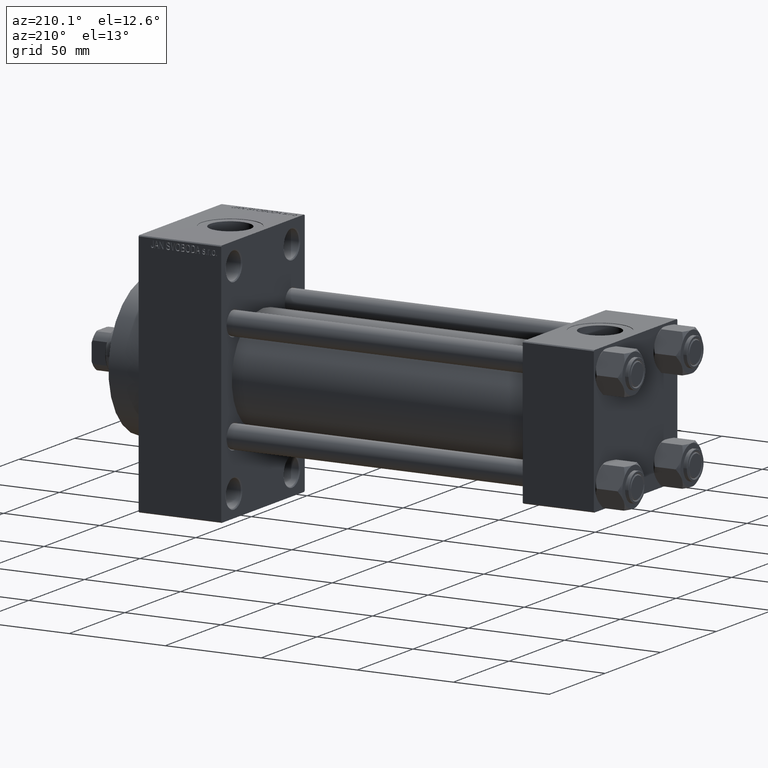
[diagram: clean part render]
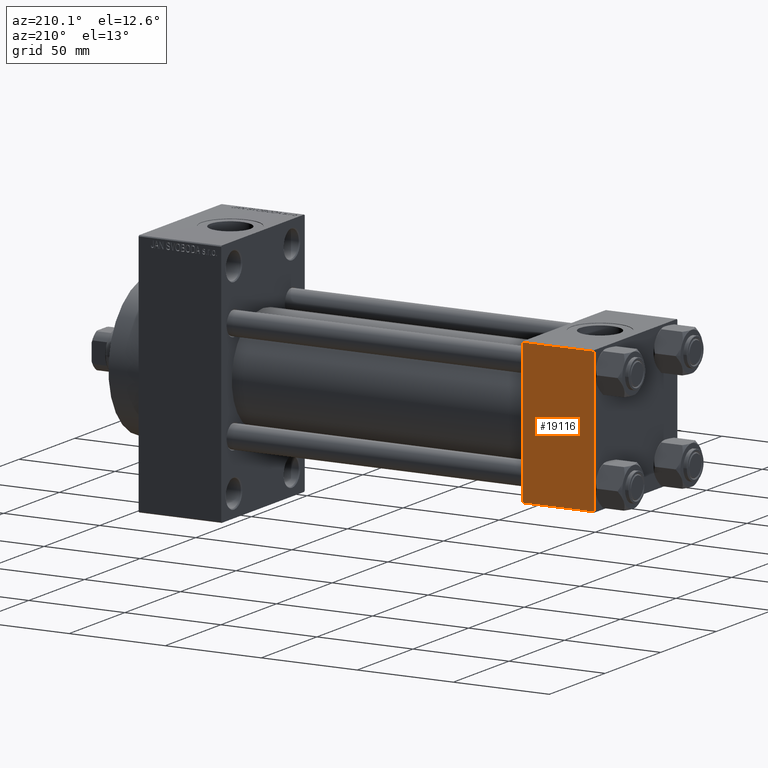
[diagram: same view with one face highlighted and labeled with its STEP entity id]
A machine part, auxiliary view. The second image highlights one B-rep face of the part: STEP entity #19116.
In plain terms, the highlighted planar face has unit normal (0, 1, 0).
Its self-contained STEP definition (entity closure, byte-faithful):
#2416 = EDGE_CURVE ( 'NONE', #22690, #38746, #14358, .T. ) ;
#2432 = DIRECTION ( 'NONE',  ( 1.000000000000000000, 0.000000000000000000, 0.000000000000000000 ) ) ;
#2991 = VECTOR ( 'NONE', #24002, 1000.000000000000000 ) ;
#5392 = VECTOR ( 'NONE', #38411, 1000.000000000000000 ) ;
#5573 = PLANE ( 'NONE',  #22362 ) ;
#7615 = DIRECTION ( 'NONE',  ( 0.000000000000000000, 0.000000000000000000, -1.000000000000000000 ) ) ;
#8859 = EDGE_CURVE ( 'NONE', #25635, #12305, #20393, .T. ) ;
#8930 = DIRECTION ( 'NONE',  ( -0.000000000000000000, 1.000000000000000000, 0.000000000000000000 ) ) ;
#9260 = VECTOR ( 'NONE', #2432, 1000.000000000000000 ) ;
#10995 = CARTESIAN_POINT ( 'NONE',  ( 0.000000000000000000, 37.49999999999999289, 37.50000000000000000 ) ) ;
#12305 = VERTEX_POINT ( 'NONE', #24489 ) ;
#14358 = LINE ( 'NONE', #10995, #24230 ) ;
#16363 = LINE ( 'NONE', #45606, #5392 ) ;
#16835 = CARTESIAN_POINT ( 'NONE',  ( 37.00000000000000000, 37.49999999999999289, 37.00000000000000000 ) ) ;
#18493 = CARTESIAN_POINT ( 'NONE',  ( 0.000000000000000000, 37.49999999999999289, 37.00000000000000000 ) ) ;
#19116 = ADVANCED_FACE ( 'NONE', ( #41799 ), #5573, .T. ) ;
#20393 = LINE ( 'NONE', #41749, #2991 ) ;
#22362 = AXIS2_PLACEMENT_3D ( 'NONE', #42033, #8930, #23585 ) ;
#22690 = VERTEX_POINT ( 'NONE', #18493 ) ;
#23585 = DIRECTION ( 'NONE',  ( 0.000000000000000000, -0.000000000000000000, 1.000000000000000000 ) ) ;
#24002 = DIRECTION ( 'NONE',  ( 0.000000000000000000, 0.000000000000000000, -1.000000000000000000 ) ) ;
#24230 = VECTOR ( 'NONE', #7615, 1000.000000000000000 ) ;
#24489 = CARTESIAN_POINT ( 'NONE',  ( 37.00000000000000000, 37.49999999999999289, -36.99999999999998579 ) ) ;
#25635 = VERTEX_POINT ( 'NONE', #30681 ) ;
#29371 = ORIENTED_EDGE ( 'NONE', *, *, #8859, .T. ) ;
#30681 = CARTESIAN_POINT ( 'NONE',  ( 37.00000000000000000, 37.49999999999999289, 37.00000000000000000 ) ) ;
#35281 = LINE ( 'NONE', #16835, #9260 ) ;
#35617 = ORIENTED_EDGE ( 'NONE', *, *, #37274, .T. ) ;
#36878 = ORIENTED_EDGE ( 'NONE', *, *, #38326, .T. ) ;
#37274 = EDGE_CURVE ( 'NONE', #12305, #38746, #16363, .T. ) ;
#38326 = EDGE_CURVE ( 'NONE', #22690, #25635, #35281, .T. ) ;
#38411 = DIRECTION ( 'NONE',  ( -1.000000000000000000, 0.000000000000000000, 0.000000000000000000 ) ) ;
#38746 = VERTEX_POINT ( 'NONE', #46741 ) ;
#41749 = CARTESIAN_POINT ( 'NONE',  ( 37.00000000000000000, 37.49999999999999289, 37.50000000000000000 ) ) ;
#41799 = FACE_OUTER_BOUND ( 'NONE', #46780, .T. ) ;
#42033 = CARTESIAN_POINT ( 'NONE',  ( 37.00000000000000000, 37.49999999999999289, 37.50000000000000000 ) ) ;
#42203 = ORIENTED_EDGE ( 'NONE', *, *, #2416, .F. ) ;
#45606 = CARTESIAN_POINT ( 'NONE',  ( 37.00000000000000000, 37.49999999999999289, -36.99999999999998579 ) ) ;
#46741 = CARTESIAN_POINT ( 'NONE',  ( 0.000000000000000000, 37.49999999999999289, -36.99999999999998579 ) ) ;
#46780 = EDGE_LOOP ( 'NONE', ( #29371, #35617, #42203, #36878 ) ) ;